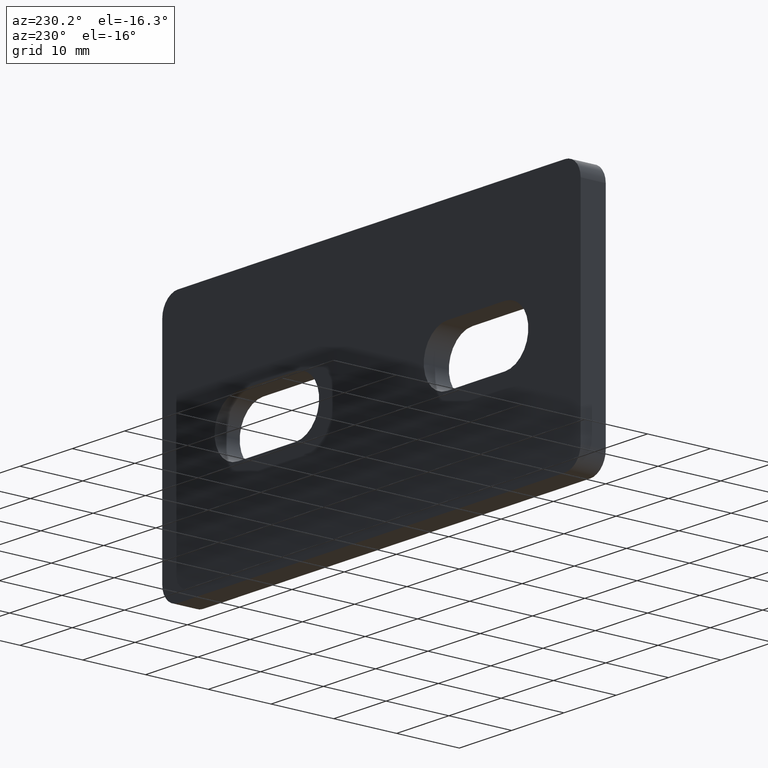
[diagram: clean part render]
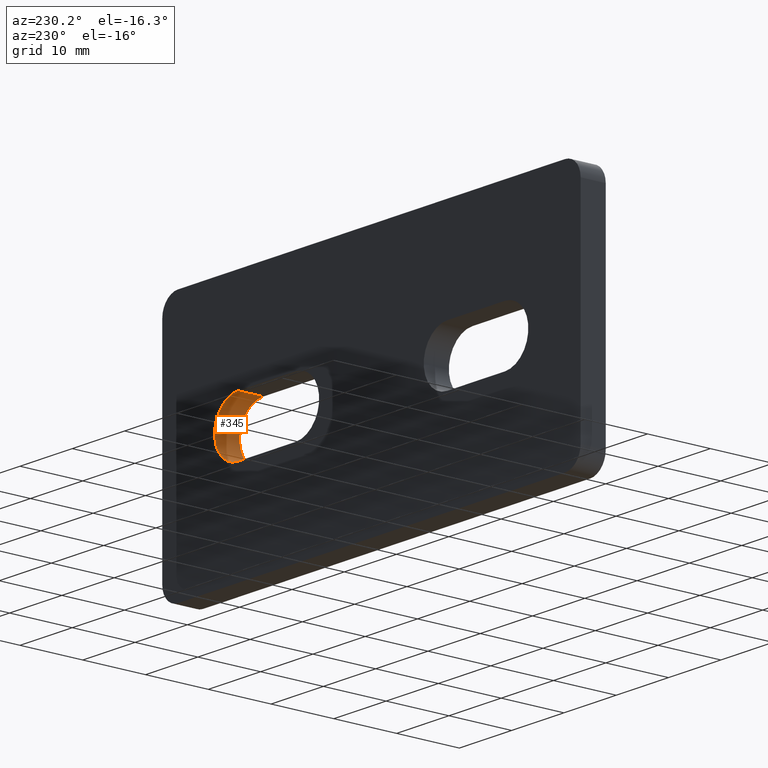
[diagram: same view with one face highlighted and labeled with its STEP entity id]
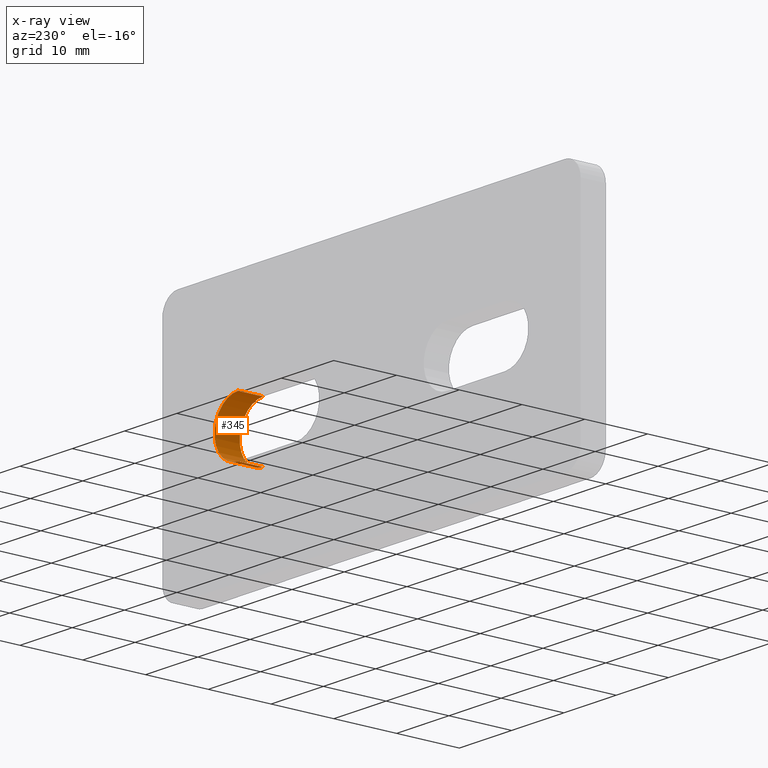
[diagram: x-ray of the same camera — body ghosted, the highlighted face saturated]
A machine part, auxiliary view. The second image highlights one B-rep face of the part: STEP entity #345.
The next image is the same camera in x-ray: the body ghosted, the highlighted face saturated — about 0% of this face is hidden behind the body in this view.
In plain terms, the highlighted cylindrical surface (partial cylindrical patch) has radius 4.5 mm, axis along (0, -1, 0).
Its self-contained STEP definition (entity closure, byte-faithful):
#18=CYLINDRICAL_SURFACE('',#402,4.5);
#39=FACE_OUTER_BOUND('',#61,.T.);
#61=EDGE_LOOP('',(#299,#300,#301,#302));
#72=CIRCLE('',#380,4.5);
#80=CIRCLE('',#389,4.5);
#113=LINE('',#601,#145);
#114=LINE('',#603,#146);
#145=VECTOR('',#496,1000.);
#146=VECTOR('',#499,1000.);
#157=VERTEX_POINT('',#531);
#158=VERTEX_POINT('',#533);
#171=VERTEX_POINT('',#561);
#174=VERTEX_POINT('',#566);
#189=EDGE_CURVE('',#158,#157,#72,.T.);
#206=EDGE_CURVE('',#174,#171,#80,.T.);
#225=EDGE_CURVE('',#158,#174,#113,.T.);
#226=EDGE_CURVE('',#157,#171,#114,.T.);
#299=ORIENTED_EDGE('',*,*,#206,.F.);
#300=ORIENTED_EDGE('',*,*,#225,.F.);
#301=ORIENTED_EDGE('',*,*,#189,.T.);
#302=ORIENTED_EDGE('',*,*,#226,.T.);
#345=ADVANCED_FACE('',(#39),#18,.F.);
#380=AXIS2_PLACEMENT_3D('',#534,#427,#428);
#389=AXIS2_PLACEMENT_3D('',#568,#454,#455);
#402=AXIS2_PLACEMENT_3D('',#602,#497,#498);
#427=DIRECTION('center_axis',(0.,1.,0.));
#428=DIRECTION('ref_axis',(0.,0.,-1.));
#454=DIRECTION('center_axis',(0.,1.,0.));
#455=DIRECTION('ref_axis',(0.,0.,-1.));
#496=DIRECTION('',(0.,-1.,0.));
#497=DIRECTION('center_axis',(0.,-1.,0.));
#498=DIRECTION('ref_axis',(0.,0.,-1.));
#499=DIRECTION('',(0.,-1.,0.));
#531=CARTESIAN_POINT('',(25.5,4.,-4.5));
#533=CARTESIAN_POINT('',(25.5,4.,4.5));
#534=CARTESIAN_POINT('Origin',(25.5,4.,0.));
#561=CARTESIAN_POINT('',(25.5,0.,-4.5));
#566=CARTESIAN_POINT('',(25.5,0.,4.5));
#568=CARTESIAN_POINT('Origin',(25.5,0.,0.));
#601=CARTESIAN_POINT('',(25.5,4.,4.5));
#602=CARTESIAN_POINT('Origin',(25.5,4.,0.));
#603=CARTESIAN_POINT('',(25.5,4.,-4.5));